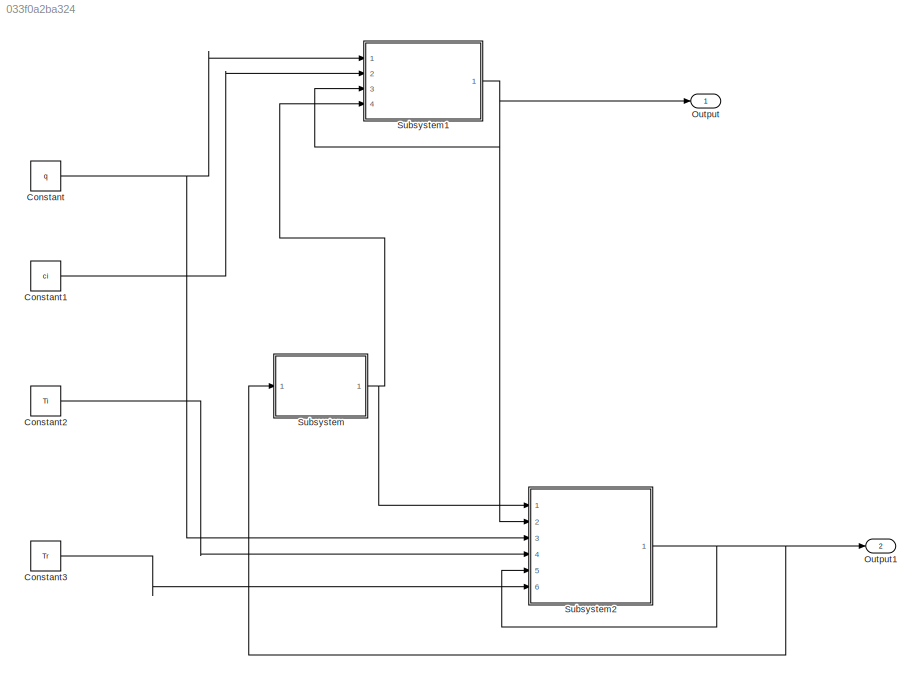
MODEL slx_033f0a2ba324
KIND model
CONFIG AbsTol = auto
CONFIG EnableMultiTasking = off
CONFIG FixedStep = auto
CONFIG MaxStep = auto
CONFIG MinStep = auto
CONFIG RelTol = 1e-3
CONFIG SampleTimeConstraint = Unconstrained
CONFIG SolverName = VariableStepAuto
CONFIG StartTime = 0.0
CONFIG StopTime = 500
BLOCK [Constant] Constant
  Value = q
BLOCK [Constant] Constant1
  Value = ci
BLOCK [Constant] Constant2
  Value = Ti
BLOCK [Constant] Constant3
  Value = Tr
BLOCK [Outport] Output
BLOCK [Outport] Output1
  Port = 2
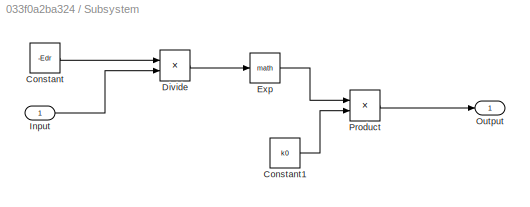
BLOCK [SubSystem] Subsystem
  Ports = [1, 1]
  RequestExecContextInheritance = off
BLOCK [Constant] Subsystem/Constant
  Value = -Edr
BLOCK [Constant] Subsystem/Constant1
  Value = k0
BLOCK [Product] Subsystem/Divide
  Inputs = */
  Ports = [2, 1]
BLOCK [Math] Subsystem/Exp
  Ports = [1, 1]
BLOCK [Inport] Subsystem/Input
BLOCK [Outport] Subsystem/Output
BLOCK [Product] Subsystem/Product
  Ports = [2, 1]
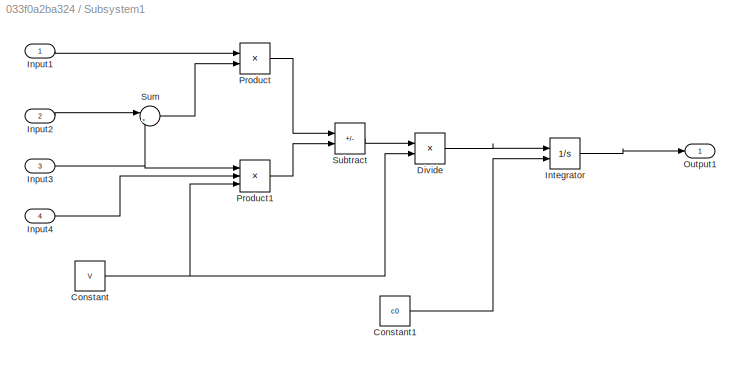
BLOCK [SubSystem] Subsystem1
  Ports = [4, 1]
  RequestExecContextInheritance = off
BLOCK [Constant] Subsystem1/Constant
  Value = V
BLOCK [Constant] Subsystem1/Constant1
  Value = c0
BLOCK [Product] Subsystem1/Divide
  Inputs = */
  Ports = [2, 1]
BLOCK [Inport] Subsystem1/Input1
BLOCK [Inport] Subsystem1/Input2
  Port = 2
BLOCK [Inport] Subsystem1/Input3
  Port = 3
BLOCK [Inport] Subsystem1/Input4
  Port = 4
BLOCK [Integrator] Subsystem1/Integrator
  InitialCondition = c0
  InitialConditionSource = external
  Ports = [2, 1]
BLOCK [Outport] Subsystem1/Output1
BLOCK [Product] Subsystem1/Product
  Ports = [2, 1]
BLOCK [Product] Subsystem1/Product1
  Inputs = 3
  Ports = [3, 1]
BLOCK [Sum] Subsystem1/Subtract
  IconShape = rectangular
  Inputs = +-
  Ports = [2, 1]
BLOCK [Sum] Subsystem1/Sum
  Inputs = |+-
  Ports = [2, 1]
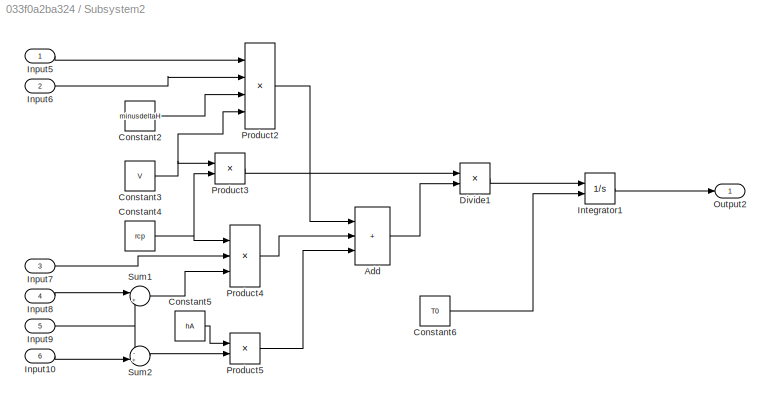
BLOCK [SubSystem] Subsystem2
  Ports = [6, 1]
  RequestExecContextInheritance = off
BLOCK [Sum] Subsystem2/Add
  IconShape = rectangular
  Inputs = +++
  Ports = [3, 1]
BLOCK [Constant] Subsystem2/Constant2
  Value = minusdeltaH
BLOCK [Constant] Subsystem2/Constant3
  Value = V
BLOCK [Constant] Subsystem2/Constant4
  Value = rcp
BLOCK [Constant] Subsystem2/Constant5
  Value = hA
BLOCK [Constant] Subsystem2/Constant6
  Value = T0
BLOCK [Product] Subsystem2/Divide1
  Inputs = /*
  Ports = [2, 1]
BLOCK [Inport] Subsystem2/Input10
  Port = 6
BLOCK [Inport] Subsystem2/Input5
BLOCK [Inport] Subsystem2/Input6
  Port = 2
BLOCK [Inport] Subsystem2/Input7
  Port = 3
BLOCK [Inport] Subsystem2/Input8
  Port = 4
BLOCK [Inport] Subsystem2/Input9
  Port = 5
BLOCK [Integrator] Subsystem2/Integrator1
  InitialCondition = c0
  InitialConditionSource = external
  Ports = [2, 1]
BLOCK [Outport] Subsystem2/Output2
BLOCK [Product] Subsystem2/Product2
  Inputs = 4
  Ports = [4, 1]
BLOCK [Product] Subsystem2/Product3
  Ports = [2, 1]
BLOCK [Product] Subsystem2/Product4
  Inputs = 3
  Ports = [3, 1]
BLOCK [Product] Subsystem2/Product5
  Ports = [2, 1]
BLOCK [Sum] Subsystem2/Sum1
  Inputs = |+-
  Ports = [2, 1]
BLOCK [Sum] Subsystem2/Sum2
  Inputs = -+|
  Ports = [2, 1]
LINE Constant1:1 -> Subsystem1:2
LINE Constant2:1 -> Subsystem2:4
LINE Constant3:1 -> Subsystem2:6
NET Constant:1 -> Subsystem1:1, Subsystem2:3
LINE Subsystem/Constant1:1 -> Subsystem/Product:2
LINE Subsystem/Constant:1 -> Subsystem/Divide:1
LINE Subsystem/Divide:1 -> Subsystem/Exp:1
LINE Subsystem/Exp:1 -> Subsystem/Product:1
LINE Subsystem/Input:1 -> Subsystem/Divide:2
LINE Subsystem/Product:1 -> Subsystem/Output:1
LINE Subsystem1/Constant1:1 -> Subsystem1/Integrator:2
NET Subsystem1/Constant:1 -> Subsystem1/Divide:2, Subsystem1/Product1:3
LINE Subsystem1/Divide:1 -> Subsystem1/Integrator:1
LINE Subsystem1/Input1:1 -> Subsystem1/Product:1
LINE Subsystem1/Input2:1 -> Subsystem1/Sum:1
NET Subsystem1/Input3:1 -> Subsystem1/Product1:1, Subsystem1/Sum:2
LINE Subsystem1/Input4:1 -> Subsystem1/Product1:2
LINE Subsystem1/Integrator:1 -> Subsystem1/Output1:1
LINE Subsystem1/Product1:1 -> Subsystem1/Subtract:2
LINE Subsystem1/Product:1 -> Subsystem1/Subtract:1
LINE Subsystem1/Subtract:1 -> Subsystem1/Divide:1
LINE Subsystem1/Sum:1 -> Subsystem1/Product:2
NET Subsystem1:1 -> Output:1, Subsystem1:3, Subsystem2:2
LINE Subsystem2/Add:1 -> Subsystem2/Divide1:2
LINE Subsystem2/Constant2:1 -> Subsystem2/Product2:3
NET Subsystem2/Constant3:1 -> Subsystem2/Product2:4, Subsystem2/Product3:1
NET Subsystem2/Constant4:1 -> Subsystem2/Product3:2, Subsystem2/Product4:1
LINE Subsystem2/Constant5:1 -> Subsystem2/Product5:1
LINE Subsystem2/Constant6:1 -> Subsystem2/Integrator1:2
LINE Subsystem2/Divide1:1 -> Subsystem2/Integrator1:1
LINE Subsystem2/Input10:1 -> Subsystem2/Sum2:2
LINE Subsystem2/Input5:1 -> Subsystem2/Product2:1
LINE Subsystem2/Input6:1 -> Subsystem2/Product2:2
LINE Subsystem2/Input7:1 -> Subsystem2/Product4:2
LINE Subsystem2/Input8:1 -> Subsystem2/Sum1:1
NET Subsystem2/Input9:1 -> Subsystem2/Sum1:2, Subsystem2/Sum2:1
LINE Subsystem2/Integrator1:1 -> Subsystem2/Output2:1
LINE Subsystem2/Product2:1 -> Subsystem2/Add:1
LINE Subsystem2/Product3:1 -> Subsystem2/Divide1:1
LINE Subsystem2/Product4:1 -> Subsystem2/Add:2
LINE Subsystem2/Product5:1 -> Subsystem2/Add:3
LINE Subsystem2/Sum1:1 -> Subsystem2/Product4:3
LINE Subsystem2/Sum2:1 -> Subsystem2/Product5:2
NET Subsystem2:1 -> Output1:1, Subsystem2:5, Subsystem:1
NET Subsystem:1 -> Subsystem1:4, Subsystem2:1
note: NET lines group one-source signal fan-out (src -> all destinations, sorted); 1:1 wires keep LINE
